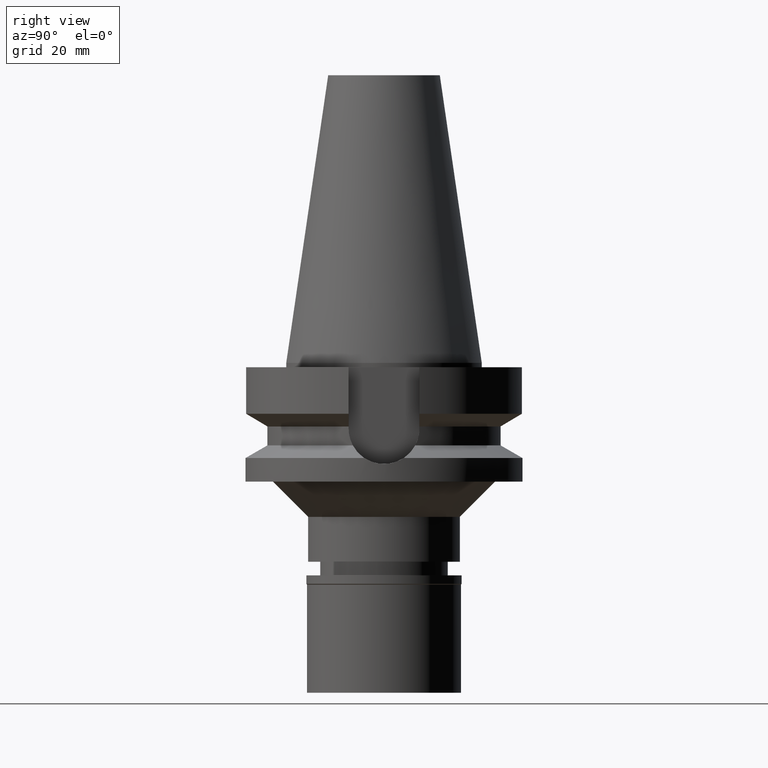
[diagram: clean part render]
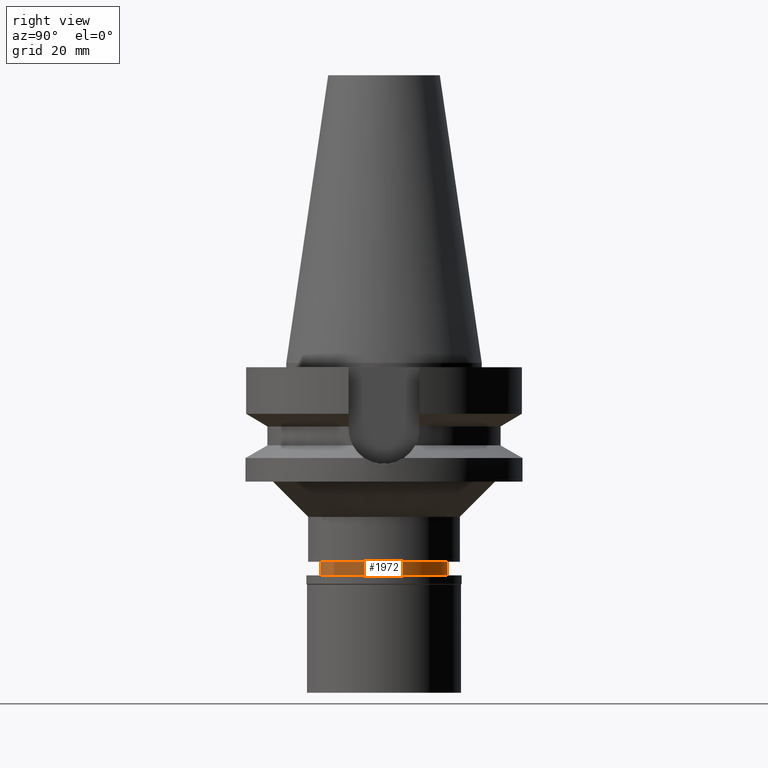
[diagram: same view with one face highlighted and labeled with its STEP entity id]
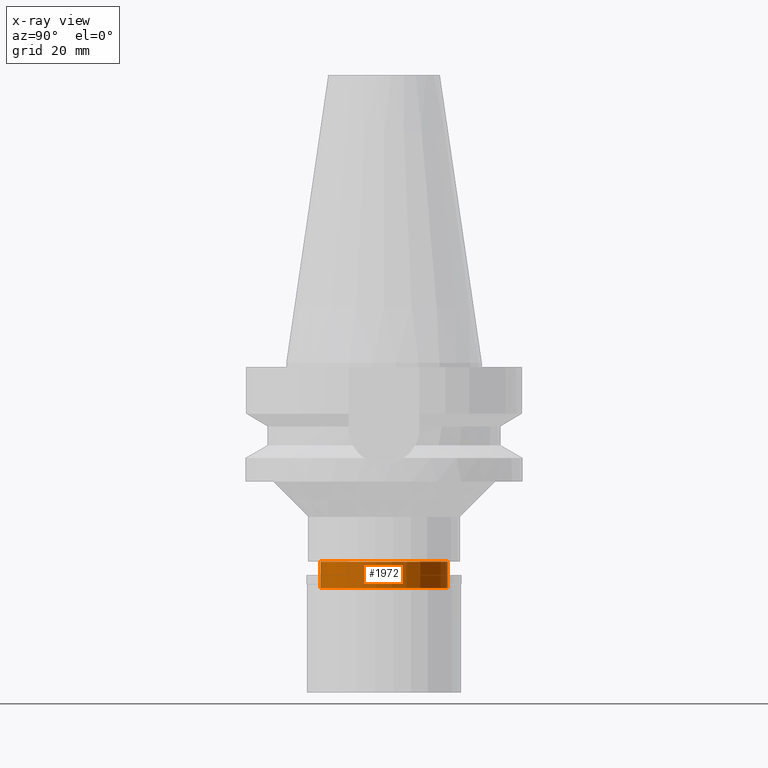
[diagram: x-ray of the same camera — body ghosted, the highlighted face saturated]
A machine part, right view. The second image highlights one B-rep face of the part: STEP entity #1972.
The next image is the same camera in x-ray: the body ghosted, the highlighted face saturated — about 0% of this face is hidden behind the body in this view.
In plain terms, the highlighted cylindrical surface (partial cylindrical patch) has radius 14.5 mm, axis along (0, 0, -1).
Its self-contained STEP definition (entity closure, byte-faithful):
#59 = DIRECTION ( 'NONE',  ( 0.0000000000000000000, -1.000000000000000000, 0.0000000000000000000 ) ) ;
#182 = DIRECTION ( 'NONE',  ( 0.0000000000000000000, 0.0000000000000000000, -1.000000000000000000 ) ) ;
#256 = ORIENTED_EDGE ( 'NONE', *, *, #2448, .F. ) ;
#270 = VERTEX_POINT ( 'NONE', #694 ) ;
#322 = CARTESIAN_POINT ( 'NONE',  ( 0.0000000000000000000, 0.0000000000000000000, -51.20000000000000284 ) ) ;
#392 = AXIS2_PLACEMENT_3D ( 'NONE', #322, #1704, #59 ) ;
#472 = CARTESIAN_POINT ( 'NONE',  ( 0.0000000000000000000, 14.50000000000000000, -51.20000000000000284 ) ) ;
#524 = LINE ( 'NONE', #783, #845 ) ;
#528 = FACE_OUTER_BOUND ( 'NONE', #2212, .T. ) ;
#693 = AXIS2_PLACEMENT_3D ( 'NONE', #2353, #2835, #2123 ) ;
#694 = CARTESIAN_POINT ( 'NONE',  ( 0.0000000000000000000, 14.50000000000000000, -45.19999999999999574 ) ) ;
#783 = CARTESIAN_POINT ( 'NONE',  ( 0.0000000000000000000, 14.50000000000000000, -45.19999999999999574 ) ) ;
#845 = VECTOR ( 'NONE', #2864, 1000.000000000000000 ) ;
#1033 = LINE ( 'NONE', #1483, #1506 ) ;
#1080 = CIRCLE ( 'NONE', #392, 14.50000000000000000 ) ;
#1211 = DIRECTION ( 'NONE',  ( 0.0000000000000000000, 0.0000000000000000000, -1.000000000000000000 ) ) ;
#1311 = CIRCLE ( 'NONE', #1948, 14.50000000000000000 ) ;
#1356 = VERTEX_POINT ( 'NONE', #472 ) ;
#1402 = VERTEX_POINT ( 'NONE', #1801 ) ;
#1483 = CARTESIAN_POINT ( 'NONE',  ( 0.0000000000000000000, -14.50000000000000000, -45.19999999999999574 ) ) ;
#1506 = VECTOR ( 'NONE', #1211, 1000.000000000000000 ) ;
#1604 = ORIENTED_EDGE ( 'NONE', *, *, #2476, .T. ) ;
#1697 = CYLINDRICAL_SURFACE ( 'NONE', #693, 14.50000000000000000 ) ;
#1704 = DIRECTION ( 'NONE',  ( 0.0000000000000000000, 0.0000000000000000000, 1.000000000000000000 ) ) ;
#1801 = CARTESIAN_POINT ( 'NONE',  ( 0.0000000000000000000, -14.50000000000000000, -45.19999999999999574 ) ) ;
#1835 = ORIENTED_EDGE ( 'NONE', *, *, #2500, .T. ) ;
#1922 = EDGE_CURVE ( 'NONE', #270, #1402, #1311, .T. ) ;
#1948 = AXIS2_PLACEMENT_3D ( 'NONE', #2270, #182, #2997 ) ;
#1972 = ADVANCED_FACE ( 'NONE', ( #528 ), #1697, .T. ) ;
#2123 = DIRECTION ( 'NONE',  ( 0.0000000000000000000, -1.000000000000000000, 0.0000000000000000000 ) ) ;
#2212 = EDGE_LOOP ( 'NONE', ( #2718, #1835, #1604, #256 ) ) ;
#2270 = CARTESIAN_POINT ( 'NONE',  ( 0.0000000000000000000, 0.0000000000000000000, -45.19999999999999574 ) ) ;
#2353 = CARTESIAN_POINT ( 'NONE',  ( 0.0000000000000000000, 0.0000000000000000000, 0.0000000000000000000 ) ) ;
#2448 = EDGE_CURVE ( 'NONE', #270, #1356, #524, .T. ) ;
#2476 = EDGE_CURVE ( 'NONE', #2666, #1356, #1080, .T. ) ;
#2500 = EDGE_CURVE ( 'NONE', #1402, #2666, #1033, .T. ) ;
#2580 = CARTESIAN_POINT ( 'NONE',  ( 0.0000000000000000000, -14.50000000000000000, -51.20000000000000284 ) ) ;
#2666 = VERTEX_POINT ( 'NONE', #2580 ) ;
#2718 = ORIENTED_EDGE ( 'NONE', *, *, #1922, .T. ) ;
#2835 = DIRECTION ( 'NONE',  ( 0.0000000000000000000, 0.0000000000000000000, -1.000000000000000000 ) ) ;
#2864 = DIRECTION ( 'NONE',  ( 0.0000000000000000000, 0.0000000000000000000, -1.000000000000000000 ) ) ;
#2997 = DIRECTION ( 'NONE',  ( 0.0000000000000000000, 1.000000000000000000, 0.0000000000000000000 ) ) ;